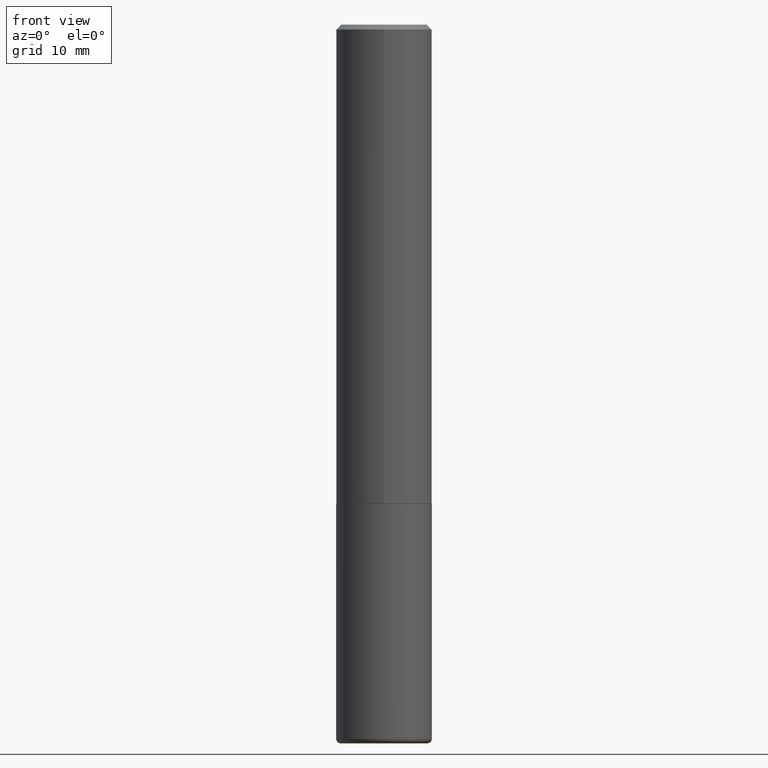
[diagram: clean part render]
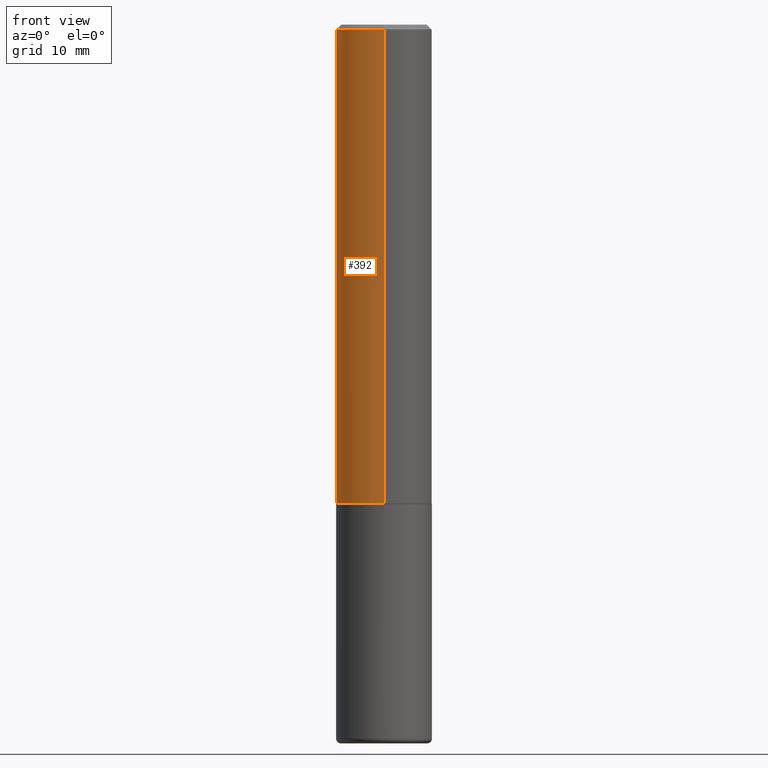
[diagram: same view with one face highlighted and labeled with its STEP entity id]
A machine part, front view. The second image highlights one B-rep face of the part: STEP entity #392.
In plain terms, the highlighted cylindrical surface (partial cylindrical patch) has radius 5 mm, axis along (-0, 0, 1).
Its self-contained STEP definition (entity closure, byte-faithful):
#14 = ORIENTED_EDGE ( 'NONE', *, *, #367, .T. ) ;
#24 = DIRECTION ( 'NONE',  ( -6.982962677686265922E-15, -1.000000000000000000, 4.163344669033670112E-15 ) ) ;
#30 = CARTESIAN_POINT ( 'NONE',  ( 4.811066445251554069E-29, -6.870052949640732965E-15, -1.967499999999999805 ) ) ;
#38 = VERTEX_POINT ( 'NONE', #409 ) ;
#41 = VERTEX_POINT ( 'NONE', #223 ) ;
#54 = DIRECTION ( 'NONE',  ( -2.445268841296851437E-29, 3.491767699944464940E-15, 1.000000000000000000 ) ) ;
#56 = VECTOR ( 'NONE', #244, 39.37007874015748143 ) ;
#127 = CARTESIAN_POINT ( 'NONE',  ( -1.350489030861325626E-15, -0.1968500000000001082, -0.01999999999999935510 ) ) ;
#129 = ORIENTED_EDGE ( 'NONE', *, *, #187, .F. ) ;
#135 = CIRCLE ( 'NONE', #254, 0.1968500000000000527 ) ;
#154 = EDGE_CURVE ( 'NONE', #41, #336, #217, .T. ) ;
#155 = DIRECTION ( 'NONE',  ( -6.982962677686265133E-15, -1.000000000000000000, 3.491137977679279029E-15 ) ) ;
#183 = ORIENTED_EDGE ( 'NONE', *, *, #154, .T. ) ;
#187 = EDGE_CURVE ( 'NONE', #38, #313, #242, .T. ) ;
#212 = CARTESIAN_POINT ( 'NONE',  ( 1.398703375343757985E-15, 0.1968500000000001360, -6.873544717340683232E-16 ) ) ;
#217 = LINE ( 'NONE', #278, #253 ) ;
#223 = CARTESIAN_POINT ( 'NONE',  ( -1.374596203102495065E-15, -0.1968500000000071026, -1.967499999999998916 ) ) ;
#231 = CIRCLE ( 'NONE', #274, 0.1968500000000002470 ) ;
#242 = LINE ( 'NONE', #212, #56 ) ;
#244 = DIRECTION ( 'NONE',  ( -2.445268841296851437E-29, 3.491767699944464940E-15, 1.000000000000000000 ) ) ;
#253 = VECTOR ( 'NONE', #54, 39.37007874015748143 ) ;
#254 = AXIS2_PLACEMENT_3D ( 'NONE', #350, #259, #155 ) ;
#259 = DIRECTION ( 'NONE',  ( -2.445268841296851437E-29, 3.491767699944464545E-15, 1.000000000000000000 ) ) ;
#269 = EDGE_LOOP ( 'NONE', ( #129, #14, #183, #299 ) ) ;
#274 = AXIS2_PLACEMENT_3D ( 'NONE', #30, #291, #24 ) ;
#278 = CARTESIAN_POINT ( 'NONE',  ( -1.374596203102542397E-15, -0.1968500000000001360, 6.873544717340683232E-16 ) ) ;
#287 = DIRECTION ( 'NONE',  ( -2.445268841296851437E-29, 3.491767699944464545E-15, 1.000000000000000000 ) ) ;
#291 = DIRECTION ( 'NONE',  ( -2.445268841296851437E-29, 3.491767699944464545E-15, 1.000000000000000000 ) ) ;
#299 = ORIENTED_EDGE ( 'NONE', *, *, #389, .F. ) ;
#313 = VERTEX_POINT ( 'NONE', #383 ) ;
#334 = AXIS2_PLACEMENT_3D ( 'NONE', #386, #287, #412 ) ;
#336 = VERTEX_POINT ( 'NONE', #127 ) ;
#350 = CARTESIAN_POINT ( 'NONE',  ( 4.890537682593712927E-31, -6.983535399888942699E-17, -0.02000000000000004205 ) ) ;
#367 = EDGE_CURVE ( 'NONE', #38, #41, #231, .T. ) ;
#383 = CARTESIAN_POINT ( 'NONE',  ( 1.374596203102542200E-15, 0.1968499999999999694, -0.02000000000000072900 ) ) ;
#384 = CYLINDRICAL_SURFACE ( 'NONE', #334, 0.1968500000000001360 ) ;
#386 = CARTESIAN_POINT ( 'NONE',  ( 0.000000000000000000, 0.000000000000000000, 0.000000000000000000 ) ) ;
#389 = EDGE_CURVE ( 'NONE', #313, #336, #135, .T. ) ;
#392 = ADVANCED_FACE ( 'NONE', ( #416 ), #384, .T. ) ;
#409 = CARTESIAN_POINT ( 'NONE',  ( 1.398703375343782440E-15, 0.1968499999999933914, -1.967500000000000471 ) ) ;
#412 = DIRECTION ( 'NONE',  ( -6.982962677686265922E-15, -1.000000000000000000, 3.491767699944464545E-15 ) ) ;
#416 = FACE_OUTER_BOUND ( 'NONE', #269, .T. ) ;